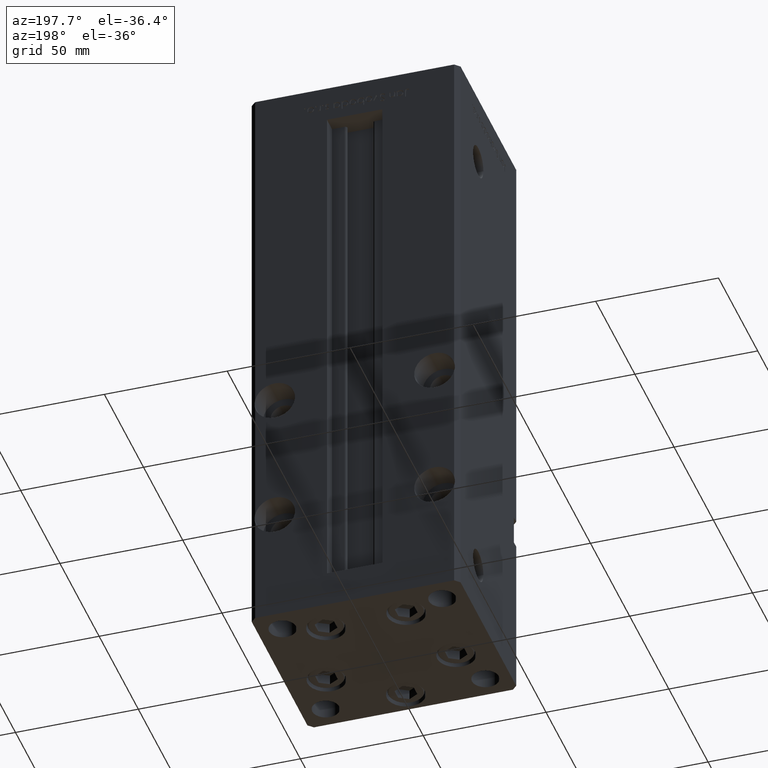
[diagram: clean part render]
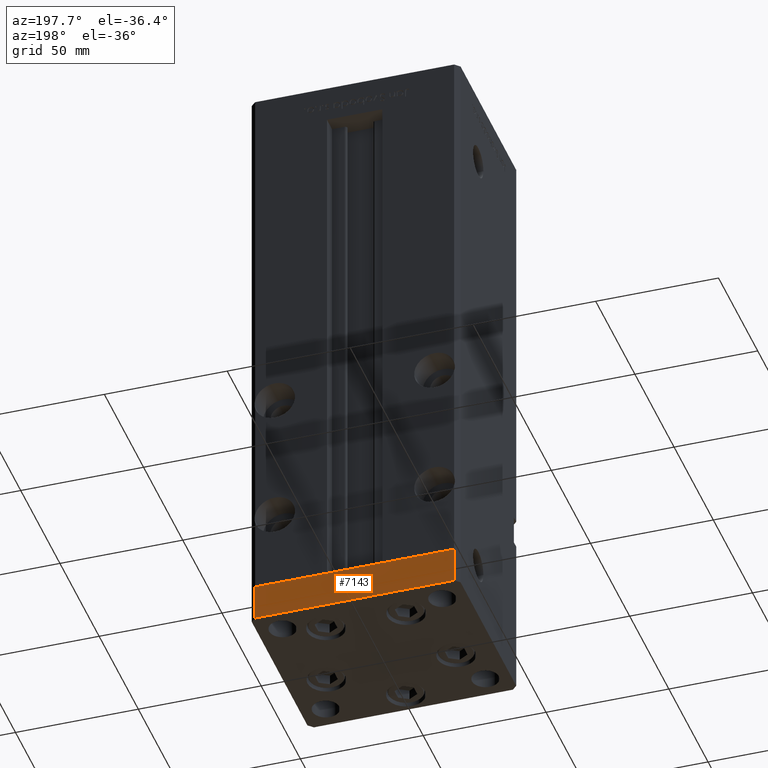
[diagram: same view with one face highlighted and labeled with its STEP entity id]
A machine part, auxiliary view. The second image highlights one B-rep face of the part: STEP entity #7143.
In plain terms, the highlighted planar face has unit normal (-0, 1, 0).
Its self-contained STEP definition (entity closure, byte-faithful):
#725 = VECTOR ( 'NONE', #38522, 1000.000000000000000 ) ;
#728 = PLANE ( 'NONE',  #29302 ) ;
#990 = ORIENTED_EDGE ( 'NONE', *, *, #8023, .T. ) ;
#1083 = ORIENTED_EDGE ( 'NONE', *, *, #20485, .F. ) ;
#3697 = VECTOR ( 'NONE', #31203, 1000.000000000000000 ) ;
#7143 = ADVANCED_FACE ( 'NONE', ( #37560 ), #728, .T. ) ;
#7521 = CARTESIAN_POINT ( 'NONE',  ( 40.49999999999991473, 37.50000000000000711, -15.00000000000000000 ) ) ;
#7961 = DIRECTION ( 'NONE',  ( -1.000000000000000000, -3.426614273534436165E-16, 0.000000000000000000 ) ) ;
#8023 = EDGE_CURVE ( 'NONE', #35997, #10634, #10731, .T. ) ;
#10634 = VERTEX_POINT ( 'NONE', #12346 ) ;
#10731 = LINE ( 'NONE', #43286, #16456 ) ;
#11256 = DIRECTION ( 'NONE',  ( 0.000000000000000000, 0.000000000000000000, 1.000000000000000000 ) ) ;
#12346 = CARTESIAN_POINT ( 'NONE',  ( -40.50000000000000711, 37.49999999999997868, 0.000000000000000000 ) ) ;
#12740 = LINE ( 'NONE', #41254, #25270 ) ;
#14270 = CARTESIAN_POINT ( 'NONE',  ( -40.50000000000000711, 37.49999999999997868, -15.00000000000000000 ) ) ;
#14488 = VERTEX_POINT ( 'NONE', #45980 ) ;
#15059 = LINE ( 'NONE', #7521, #3697 ) ;
#15086 = EDGE_CURVE ( 'NONE', #14488, #35997, #15059, .T. ) ;
#16456 = VECTOR ( 'NONE', #11256, 1000.000000000000000 ) ;
#19482 = LINE ( 'NONE', #52293, #725 ) ;
#20099 = ORIENTED_EDGE ( 'NONE', *, *, #15086, .T. ) ;
#20485 = EDGE_CURVE ( 'NONE', #14488, #47393, #12740, .T. ) ;
#25270 = VECTOR ( 'NONE', #33451, 1000.000000000000000 ) ;
#29302 = AXIS2_PLACEMENT_3D ( 'NONE', #41317, #29469, #7961 ) ;
#29469 = DIRECTION ( 'NONE',  ( -3.426614273534436165E-16, 1.000000000000000000, 0.000000000000000000 ) ) ;
#31203 = DIRECTION ( 'NONE',  ( -1.000000000000000000, -3.426614273534436165E-16, 0.000000000000000000 ) ) ;
#32016 = ORIENTED_EDGE ( 'NONE', *, *, #44580, .F. ) ;
#33451 = DIRECTION ( 'NONE',  ( 0.000000000000000000, 0.000000000000000000, 1.000000000000000000 ) ) ;
#35997 = VERTEX_POINT ( 'NONE', #14270 ) ;
#37560 = FACE_OUTER_BOUND ( 'NONE', #51124, .T. ) ;
#38522 = DIRECTION ( 'NONE',  ( -1.000000000000000000, -3.426614273534436165E-16, 0.000000000000000000 ) ) ;
#41254 = CARTESIAN_POINT ( 'NONE',  ( 40.49999999999991473, 37.50000000000000711, -15.00000000000000000 ) ) ;
#41317 = CARTESIAN_POINT ( 'NONE',  ( 40.49999999999991473, 37.50000000000000711, -15.00000000000000000 ) ) ;
#43286 = CARTESIAN_POINT ( 'NONE',  ( -40.50000000000000711, 37.49999999999997868, -15.00000000000000000 ) ) ;
#44580 = EDGE_CURVE ( 'NONE', #47393, #10634, #19482, .T. ) ;
#45980 = CARTESIAN_POINT ( 'NONE',  ( 40.49999999999991473, 37.50000000000000711, -15.00000000000000000 ) ) ;
#47393 = VERTEX_POINT ( 'NONE', #50694 ) ;
#50694 = CARTESIAN_POINT ( 'NONE',  ( 40.49999999999991473, 37.50000000000000711, 0.000000000000000000 ) ) ;
#51124 = EDGE_LOOP ( 'NONE', ( #32016, #1083, #20099, #990 ) ) ;
#52293 = CARTESIAN_POINT ( 'NONE',  ( 40.49999999999991473, 37.50000000000000711, 0.000000000000000000 ) ) ;